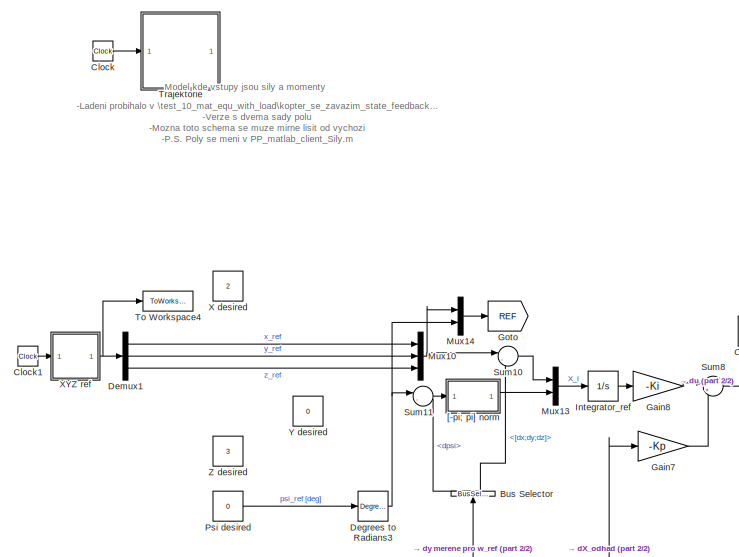
[diagram: root canvas - part 1/2, middle left region]
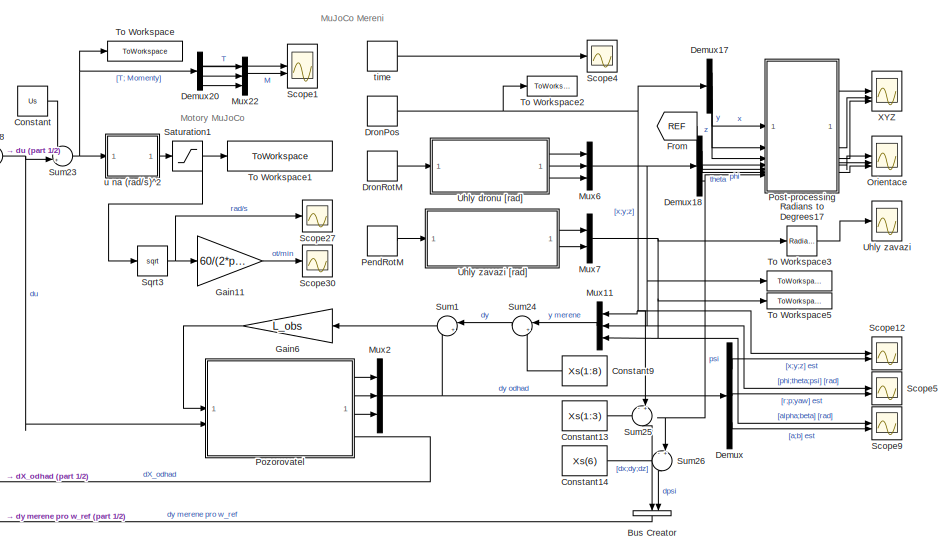
[diagram: root canvas - part 2/2, middle right region]
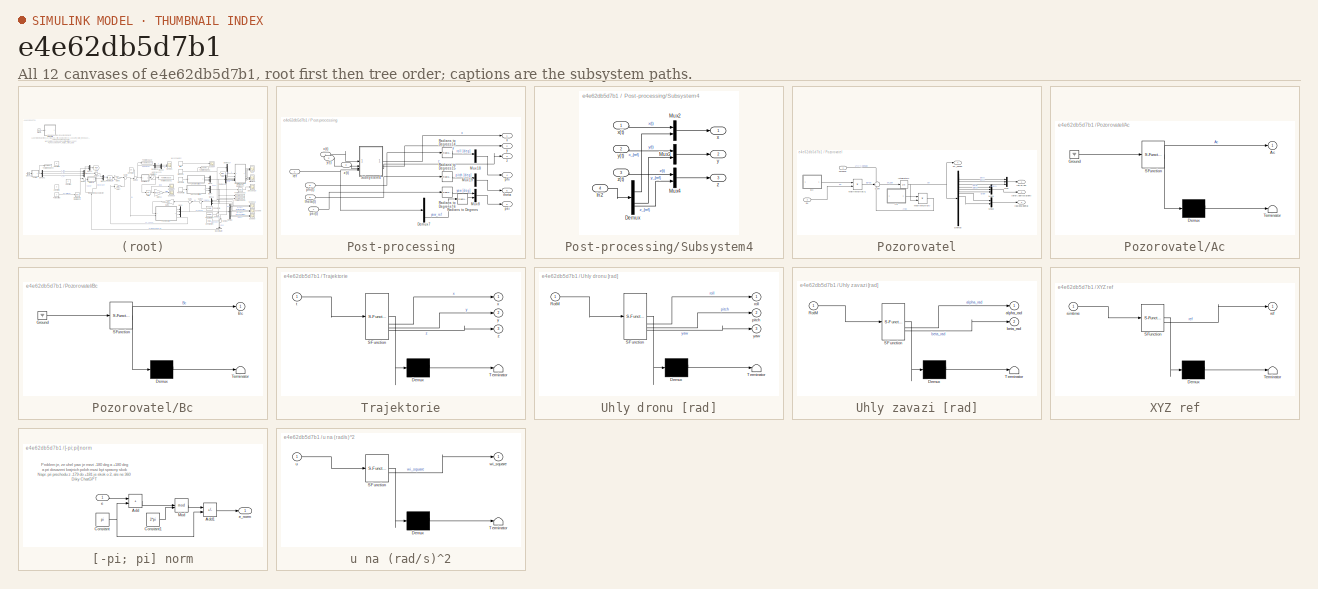
[diagram: thumbnail index - all 12 canvases of the model, root first then tree order]
MODEL slx_e4e62db5d7b1
KIND model
CONFIG AbsTol = auto
CONFIG EnableMultiTasking = off
CONFIG FixedStep = 0.005
CONFIG MaxStep = auto
CONFIG MinStep = auto
CONFIG RelTol = 1e-3
CONFIG SampleTimeConstraint = Unconstrained
CONFIG SolverName = ode1
CONFIG StartTime = 0.0
CONFIG StopTime = 50
BLOCK [BusCreator] Bus Creator
  DisplayOption = bar
  InheritFromInputs = on
  Inputs = 2
  NameLocation = left
BLOCK [BusSelector] Bus Selector
  NameLocation = right
  OutputSignals = dpsi,[dx;dy;dz]
BLOCK [Clock] Clock
  Commented = on
BLOCK [Clock] Clock1
BLOCK [Constant] Constant
  Value = Us
BLOCK [Constant] Constant13
  Value = Xs(1:3)
BLOCK [Constant] Constant14
  Value = Xs(6)
BLOCK [Constant] Constant9
  Value = Xs(1:8)
BLOCK [Reference] Degrees to Radians3  REF=simulink_extras/Transformations/Degrees to
Radians
  SourceBlock = simulink_extras/Transformations/Degrees to\nRadians
  SourceType = DegreesToRadians
BLOCK [Demux] Demux
  Outputs = 3
BLOCK [Demux] Demux1
  Outputs = 3
BLOCK [Demux] Demux17
  Outputs = 3
BLOCK [Demux] Demux18
  Outputs = 3
BLOCK [Demux] Demux20
BLOCK [MATLABFcn] DronPos
  MATLABFcn = evalin('base', 'DronPos');
  Output1D = off
  OutputDimensions = [3,1]
BLOCK [MATLABFcn] DronRotM
  MATLABFcn = evalin('base', 'DronRotM');
  Output1D = off
  OutputDimensions = [3,3]
BLOCK [From] From
  GotoTag = REF
BLOCK [Gain] Gain11
  Gain = 60/(2*pi)
BLOCK [Gain] Gain6
  Gain = L_obs
  Multiplication = Matrix(K*u)
BLOCK [Gain] Gain7
  Gain = -Kp
  Multiplication = Matrix(K*u)
BLOCK [Gain] Gain8
  Gain = -Ki
  Multiplication = Matrix(K*u)
BLOCK [Goto] Goto
  GotoTag = REF
BLOCK [Integrator] Integrator_ref
  InitialCondition = init_int_dref
BLOCK [Mux] Mux10
  DisplayOption = bar
  Inputs = 3
BLOCK [Mux] Mux11
  DisplayOption = bar
  Inputs = 3
BLOCK [Mux] Mux13
  DisplayOption = bar
  Inputs = 2
BLOCK [Mux] Mux14
  DisplayOption = bar
  Inputs = 2
BLOCK [Mux] Mux2
  DisplayOption = bar
  Inputs = 3
  NameLocation = top
BLOCK [Mux] Mux22
  DisplayOption = bar
  Inputs = 3
BLOCK [Mux] Mux6
  DisplayOption = bar
  Inputs = 3
BLOCK [Mux] Mux7
  DisplayOption = bar
  Inputs = 2
BLOCK [Scope] Orientace
  Floating = off
  NumInputPorts = 3
  ScopeSpecificationString = Simulink.scopes.TimeScopeBlockCfg('CurrentConfiguration', extmgr.ConfigurationSet(extmgr.Configuration('Core','General UI',true),extmgr.Configuration('Core','Source UI',true),extmgr.Configuration('Sources','WiredSimulink',true,'DataLoggingVariableName','ScopeData1'),extmgr.Configuration('Visuals','Time Domain',true,'PlotType','Stairs','SerializedDisplays',{struct('MinYLimReal','-20.4333','MaxYLimR...<+3445ch>
BLOCK [MATLABFcn] PendRotM
  MATLABFcn = evalin('base', 'PendRotM');
  Output1D = off
  OutputDimensions = [3,3]
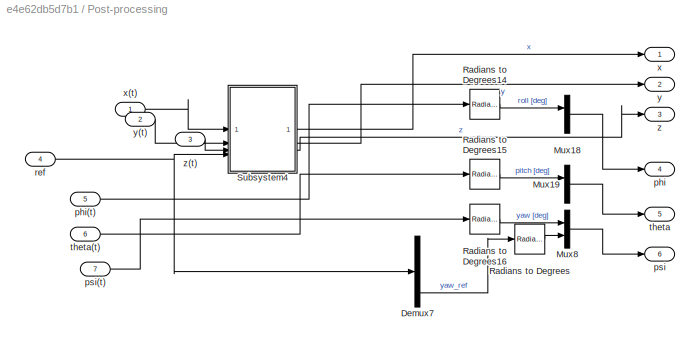
BLOCK [SubSystem] Post-processing
BLOCK [Demux] Post-processing/Demux7
BLOCK [Mux] Post-processing/Mux18
  DisplayOption = bar
  Inputs = 2
BLOCK [Mux] Post-processing/Mux19
  DisplayOption = bar
  Inputs = 2
BLOCK [Mux] Post-processing/Mux8
  DisplayOption = bar
  Inputs = 2
BLOCK [Reference] Post-processing/Radians to Degrees  REF=simulink_extras/Transformations/Radians
to Degrees
  SourceBlock = simulink_extras/Transformations/Radians\nto Degrees
  SourceType = RadiansToDegrees
BLOCK [Reference] Post-processing/Radians to Degrees14  REF=simulink_extras/Transformations/Radians
to Degrees
  SourceBlock = simulink_extras/Transformations/Radians\nto Degrees
  SourceType = RadiansToDegrees
BLOCK [Reference] Post-processing/Radians to Degrees15  REF=simulink_extras/Transformations/Radians
to Degrees
  SourceBlock = simulink_extras/Transformations/Radians\nto Degrees
  SourceType = RadiansToDegrees
BLOCK [Reference] Post-processing/Radians to Degrees16  REF=simulink_extras/Transformations/Radians
to Degrees
  SourceBlock = simulink_extras/Transformations/Radians\nto Degrees
  SourceType = RadiansToDegrees
BLOCK [SubSystem] Post-processing/Subsystem4
BLOCK [Demux] Post-processing/Subsystem4/Demux
BLOCK [Inport] Post-processing/Subsystem4/In2
  Port = 4
BLOCK [Mux] Post-processing/Subsystem4/Mux2
  DisplayOption = bar
  Inputs = 2
BLOCK [Mux] Post-processing/Subsystem4/Mux3
  DisplayOption = bar
  Inputs = 2
BLOCK [Mux] Post-processing/Subsystem4/Mux4
  DisplayOption = bar
  Inputs = 2
BLOCK [Outport] Post-processing/Subsystem4/x
BLOCK [Inport] Post-processing/Subsystem4/x(t)
BLOCK [Outport] Post-processing/Subsystem4/y
  Port = 2
BLOCK [Inport] Post-processing/Subsystem4/y(t)
  Port = 2
BLOCK [Outport] Post-processing/Subsystem4/z
  Port = 3
BLOCK [Inport] Post-processing/Subsystem4/z(t)
  Port = 3
BLOCK [Outport] Post-processing/phi
  Port = 4
BLOCK [Inport] Post-processing/phi(t)
  Port = 5
BLOCK [Outport] Post-processing/psi
  Port = 6
BLOCK [Inport] Post-processing/psi(t)
  Port = 7
BLOCK [Inport] Post-processing/ref
  Port = 4
BLOCK [Outport] Post-processing/theta
  Port = 5
BLOCK [Inport] Post-processing/theta(t)
  Port = 6
BLOCK [Outport] Post-processing/x
BLOCK [Inport] Post-processing/x(t)
BLOCK [Outport] Post-processing/y
  Port = 2
BLOCK [Inport] Post-processing/y(t)
  Port = 2
BLOCK [Outport] Post-processing/z
  Port = 3
BLOCK [Inport] Post-processing/z(t)
  Port = 3
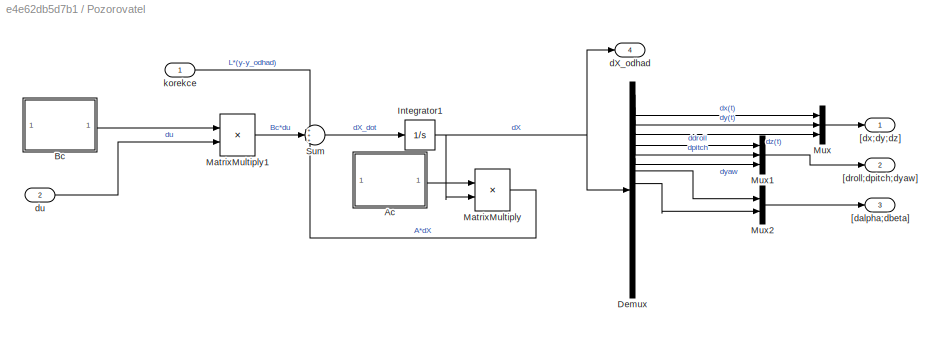
BLOCK [SubSystem] Pozorovatel
BLOCK [SubSystem] Pozorovatel/Ac
  ErrorFcn = Stateflow.Translate.translate
  PermitHierarchicalResolution = ExplicitOnly
  SFBlockType = MATLAB Function
  TreatAsAtomicUnit = on
BLOCK [Demux] Pozorovatel/Ac/ Demux 
  Outputs = 1
BLOCK [Ground] Pozorovatel/Ac/ Ground 
BLOCK [S-Function] Pozorovatel/Ac/ SFunction 
  EnableBusSupport = on
  FunctionName = sf_sfun
  Parameters = Ip,M,d,g,m
  PortCounts = [1 2]
  SFcnIsStateOwnerBlock = off
  SFunctionDeploymentMode = off
  Tag = Stateflow S-Function 2
BLOCK [Terminator] Pozorovatel/Ac/ Terminator 
BLOCK [Outport] Pozorovatel/Ac/Ac
BLOCK [SubSystem] Pozorovatel/Bc
  ErrorFcn = Stateflow.Translate.translate
  PermitHierarchicalResolution = ExplicitOnly
  SFBlockType = MATLAB Function
  TreatAsAtomicUnit = on
BLOCK [Demux] Pozorovatel/Bc/ Demux 
  Outputs = 1
BLOCK [Ground] Pozorovatel/Bc/ Ground 
BLOCK [S-Function] Pozorovatel/Bc/ SFunction 
  EnableBusSupport = on
  FunctionName = sf_sfun
  Parameters = Ixx,Iyy,Izz,M,m
  PortCounts = [1 2]
  SFcnIsStateOwnerBlock = off
  SFunctionDeploymentMode = off
  Tag = Stateflow S-Function 3
BLOCK [Terminator] Pozorovatel/Bc/ Terminator 
BLOCK [Outport] Pozorovatel/Bc/Bc
BLOCK [Demux] Pozorovatel/Demux
  Outputs = 16
BLOCK [Integrator] Pozorovatel/Integrator1
  InitialCondition = Xinit_ss - Xs
BLOCK [Product] Pozorovatel/MatrixMultiply
  Multiplication = Matrix(*)
BLOCK [Product] Pozorovatel/MatrixMultiply1
  Multiplication = Matrix(*)
BLOCK [Mux] Pozorovatel/Mux
  DisplayOption = bar
  Inputs = 3
BLOCK [Mux] Pozorovatel/Mux1
  DisplayOption = bar
  Inputs = 3
BLOCK [Mux] Pozorovatel/Mux2
  DisplayOption = bar
  Inputs = 2
BLOCK [Sum] Pozorovatel/Sum
  Inputs = +++
BLOCK [Outport] Pozorovatel/[dalpha;dbeta]
  Port = 3
BLOCK [Outport] Pozorovatel/[droll;dpitch;dyaw]
  Port = 2
BLOCK [Outport] Pozorovatel/[dx;dy;dz]
BLOCK [Outport] Pozorovatel/dX_odhad
  Port = 4
BLOCK [Inport] Pozorovatel/du
  Port = 2
BLOCK [Inport] Pozorovatel/korekce
BLOCK [Constant] Psi desired
  Value = 0
BLOCK [Reference] Radians to Degrees17  REF=simulink_extras/Transformations/Radians
to Degrees
  SourceBlock = simulink_extras/Transformations/Radians\nto Degrees
  SourceType = RadiansToDegrees
BLOCK [Saturate] Saturation1
  LowerLimit = 0
  UpperLimit = 1976^2
BLOCK [Scope] Scope1
  Floating = off
  NumInputPorts = 2
  ScopeSpecificationString = Simulink.scopes.TimeScopeBlockCfg('CurrentConfiguration', extmgr.ConfigurationSet(extmgr.Configuration('Core','General UI',true),extmgr.Configuration('Core','Source UI',true),extmgr.Configuration('Sources','WiredSimulink',true,'DataLoggingVariableName','ScopeData1'),extmgr.Configuration('Visuals','Time Domain',true,'SerializedDisplays',{struct('MinYLimReal','-25.21305','MaxYLimReal','97.36753','YL...<+2267ch>
BLOCK [Scope] Scope12
  Commented = on
  Floating = off
  NumInputPorts = 2
  ScopeSpecificationString = Simulink.scopes.TimeScopeBlockCfg('CurrentConfiguration', extmgr.ConfigurationSet(extmgr.Configuration('Core','General UI',true),extmgr.Configuration('Core','Source UI',true),extmgr.Configuration('Sources','WiredSimulink',true,'DataLoggingVariableName','ScopeData1'),extmgr.Configuration('Visuals','Time Domain',true,'SerializedDisplays',{struct('MinYLimReal','-4.72902','MaxYLimReal','9.5391','YLabe...<+1733ch>
BLOCK [Scope] Scope27
  Floating = off
  NumInputPorts = 1
  ScopeSpecificationString = Simulink.scopes.TimeScopeBlockCfg('CurrentConfiguration', extmgr.ConfigurationSet(extmgr.Configuration('Core','General UI',true),extmgr.Configuration('Core','Source UI',true),extmgr.Configuration('Sources','WiredSimulink',true,'DataLoggingVariableName','ScopeData2'),extmgr.Configuration('Visuals','Time Domain',true,'SerializedDisplays',{struct('MinYLimReal','258.69126','MaxYLimReal','1402.04628','...<+1576ch>
BLOCK [Scope] Scope30
  Commented = on
  Floating = off
  NumInputPorts = 1
  ScopeSpecificationString = Simulink.scopes.TimeScopeBlockCfg('CurrentConfiguration', extmgr.ConfigurationSet(extmgr.Configuration('Core','General UI',true),extmgr.Configuration('Core','Source UI',true),extmgr.Configuration('Sources','WiredSimulink',true,'DataLoggingVariableName','ScopeData3'),extmgr.Configuration('Visuals','Time Domain',true,'SerializedDisplays',{struct('MinYLimReal','2470.31961','MaxYLimReal','13388.55573'...<+1588ch>
BLOCK [Scope] Scope4
  Floating = off
  NumInputPorts = 1
  ScopeSpecificationString = Simulink.scopes.TimeScopeBlockCfg('CurrentConfiguration', extmgr.ConfigurationSet(extmgr.Configuration('Core','General UI',true),extmgr.Configuration('Core','Source UI',true),extmgr.Configuration('Sources','WiredSimulink',true,'DataLoggingVariableName','ScopeData7'),extmgr.Configuration('Visuals','Time Domain',true,'SerializedDisplays',{struct('MinYLimReal','-2.00000','MaxYLimReal','18.00000','YLa...<+1529ch>
BLOCK [Scope] Scope5
  Commented = on
  Floating = off
  NumInputPorts = 2
  ScopeSpecificationString = Simulink.scopes.TimeScopeBlockCfg('CurrentConfiguration', extmgr.ConfigurationSet(extmgr.Configuration('Core','General UI',true),extmgr.Configuration('Core','Source UI',true),extmgr.Configuration('Sources','WiredSimulink',true,'DataLoggingVariableName','ScopeData2'),extmgr.Configuration('Visuals','Time Domain',true,'SerializedDisplays',{struct('MinYLimReal','-0.12215','MaxYLimReal','0.18486','YLab...<+1785ch>
BLOCK [Scope] Scope9
  Commented = on
  Floating = off
  NumInputPorts = 2
  ScopeSpecificationString = Simulink.scopes.TimeScopeBlockCfg('CurrentConfiguration', extmgr.ConfigurationSet(extmgr.Configuration('Core','General UI',true),extmgr.Configuration('Core','Source UI',true),extmgr.Configuration('Sources','WiredSimulink',true,'DataLoggingVariableName','ScopeData4'),extmgr.Configuration('Visuals','Time Domain',true,'SerializedDisplays',{struct('MinYLimReal','-0.22219','MaxYLimReal','0.18386','YLab...<+1590ch>
BLOCK [Sqrt] Sqrt3
BLOCK [Sum] Sum1
  Inputs = |+-
BLOCK [Sum] Sum10
  Inputs = |-+
BLOCK [Sum] Sum11
  Inputs = |-+
BLOCK [Sum] Sum23
  Inputs = ++|
BLOCK [Sum] Sum24
  Inputs = |+-
BLOCK [Sum] Sum25
  Inputs = -+|
  NameLocation = left
BLOCK [Sum] Sum26
  Inputs = -+|
  NameLocation = left
BLOCK [Sum] Sum8
  Inputs = |++
BLOCK [ToWorkspace] To Workspace
  FixptAsFi = on
  MaxDataPoints = inf
  SampleTime = -1
  SaveFormat = Timeseries
  VariableName = sily
BLOCK [ToWorkspace] To Workspace1
  FixptAsFi = on
  MaxDataPoints = inf
  SampleTime = -1
  VariableName = Rotor_AngVel_square
BLOCK [ToWorkspace] To Workspace2
  FixptAsFi = on
  MaxDataPoints = inf
  SampleTime = -1
  SaveFormat = Timeseries
  VariableName = dron_pos
BLOCK [ToWorkspace] To Workspace3
  FixptAsFi = on
  MaxDataPoints = inf
  SampleTime = -1
  SaveFormat = Timeseries
  VariableName = dron_angles
BLOCK [ToWorkspace] To Workspace4
  FixptAsFi = on
  MaxDataPoints = inf
  SampleTime = -1
  SaveFormat = Timeseries
  VariableName = ref
BLOCK [ToWorkspace] To Workspace5
  FixptAsFi = on
  MaxDataPoints = inf
  SampleTime = -1
  SaveFormat = Timeseries
  VariableName = pend_angles
BLOCK [SubSystem] Trajektorie
  Commented = on
  ErrorFcn = Stateflow.Translate.translate
  PermitHierarchicalResolution = ExplicitOnly
  SFBlockType = MATLAB Function
  TreatAsAtomicUnit = on
BLOCK [Demux] Trajektorie/ Demux 
  Outputs = 1
BLOCK [S-Function] Trajektorie/ SFunction 
  EnableBusSupport = on
  FunctionName = sf_sfun
  PortCounts = [1 4]
  SFcnIsStateOwnerBlock = off
  SFunctionDeploymentMode = off
  Tag = Stateflow S-Function 4
BLOCK [Terminator] Trajektorie/ Terminator 
BLOCK [Inport] Trajektorie/t
BLOCK [Outport] Trajektorie/x
BLOCK [Outport] Trajektorie/y
  Port = 2
BLOCK [Outport] Trajektorie/z
  Port = 3
BLOCK [SubSystem] Uhly dronu [rad]
  ErrorFcn = Stateflow.Translate.translate
  PermitHierarchicalResolution = ExplicitOnly
  SFBlockType = MATLAB Function
  TreatAsAtomicUnit = on
BLOCK [Demux] Uhly dronu [rad]/ Demux 
  Outputs = 1
BLOCK [S-Function] Uhly dronu [rad]/ SFunction 
  EnableBusSupport = on
  FunctionName = sf_sfun
  PortCounts = [1 4]
  SFcnIsStateOwnerBlock = off
  SFunctionDeploymentMode = off
  Tag = Stateflow S-Function 1
BLOCK [Terminator] Uhly dronu [rad]/ Terminator 
BLOCK [Inport] Uhly dronu [rad]/RotM
BLOCK [Outport] Uhly dronu [rad]/pitch
  Port = 2
BLOCK [Outport] Uhly dronu [rad]/roll
BLOCK [Outport] Uhly dronu [rad]/yaw
  Port = 3
BLOCK [Scope] Uhly zavazi
  Floating = off
  NumInputPorts = 1
  ScopeSpecificationString = Simulink.scopes.TimeScopeBlockCfg('CurrentConfiguration', extmgr.ConfigurationSet(extmgr.Configuration('Core','General UI',true),extmgr.Configuration('Core','Source UI',true),extmgr.Configuration('Sources','WiredSimulink',true,'DataLoggingVariableName','ScopeData2'),extmgr.Configuration('Visuals','Time Domain',true,'PlotType','Stairs','SerializedDisplays',{struct('MinYLimReal','-30.5645','MaxYLimR...<+1794ch>
BLOCK [SubSystem] Uhly zavazi [rad]
  ErrorFcn = Stateflow.Translate.translate
  PermitHierarchicalResolution = ExplicitOnly
  SFBlockType = MATLAB Function
  TreatAsAtomicUnit = on
BLOCK [Demux] Uhly zavazi [rad]/ Demux 
  Outputs = 1
BLOCK [S-Function] Uhly zavazi [rad]/ SFunction 
  EnableBusSupport = on
  FunctionName = sf_sfun
  PortCounts = [1 3]
  SFcnIsStateOwnerBlock = off
  SFunctionDeploymentMode = off
  Tag = Stateflow S-Function 9
BLOCK [Terminator] Uhly zavazi [rad]/ Terminator 
BLOCK [Inport] Uhly zavazi [rad]/RotM
BLOCK [Outport] Uhly zavazi [rad]/alpha_rad
BLOCK [Outport] Uhly zavazi [rad]/beta_rad
  Port = 2
BLOCK [Constant] X desired
  Value = 2
BLOCK [Scope] XYZ
  Floating = off
  NumInputPorts = 3
  ScopeSpecificationString = Simulink.scopes.TimeScopeBlockCfg('CurrentConfiguration', extmgr.ConfigurationSet(extmgr.Configuration('Core','General UI',true,'FigureColor',[0 0 0]),extmgr.Configuration('Core','Source UI',true),extmgr.Configuration('Sources','WiredSimulink',true,'DataLoggingVariableName','ScopeData6'),extmgr.Configuration('Visuals','Time Domain',true,'PlotType','Stairs','SerializedDisplays',{struct('MinYLimReal...<+3762ch>
BLOCK [SubSystem] XYZ ref
  ErrorFcn = Stateflow.Translate.translate
  PermitHierarchicalResolution = ExplicitOnly
  SFBlockType = MATLAB Function
  TreatAsAtomicUnit = on
BLOCK [Demux] XYZ ref/ Demux 
  Outputs = 1
BLOCK [S-Function] XYZ ref/ SFunction 
  EnableBusSupport = on
  FunctionName = sf_sfun
  PortCounts = [1 2]
  SFcnIsStateOwnerBlock = off
  SFunctionDeploymentMode = off
  Tag = Stateflow S-Function 5
BLOCK [Terminator] XYZ ref/ Terminator 
BLOCK [Outport] XYZ ref/ref
BLOCK [Inport] XYZ ref/simtime
BLOCK [Constant] Y desired
  Value = 0
BLOCK [Constant] Z desired
  Value = 3
BLOCK [SubSystem] [-pi; pi] norm
BLOCK [Sum] [-pi; pi] norm/Add
  IconShape = rectangular
BLOCK [Sum] [-pi; pi] norm/Add1
  IconShape = rectangular
  Inputs = +-
BLOCK [Constant] [-pi; pi] norm/Constant
  Value = pi
BLOCK [Constant] [-pi; pi] norm/Constant1
  Value = 2*pi
BLOCK [Math] [-pi; pi] norm/Mod
  Operator = mod
BLOCK [Inport] [-pi; pi] norm/e
BLOCK [Outport] [-pi; pi] norm/e_norm
BLOCK [MATLABFcn] time
  MATLABFcn = evalin('base', 'time');
  Output1D = off
BLOCK [SubSystem] u na (rad//s)^2
  ErrorFcn = Stateflow.Translate.translate
  PermitHierarchicalResolution = ExplicitOnly
  SFBlockType = MATLAB Function
  TreatAsAtomicUnit = on
BLOCK [Demux] u na (rad//s)^2/ Demux 
  Outputs = 1
BLOCK [S-Function] u na (rad//s)^2/ SFunction 
  EnableBusSupport = on
  FunctionName = sf_sfun
  Parameters = b_moment,k_thrust,l
  PortCounts = [1 2]
  SFcnIsStateOwnerBlock = off
  SFunctionDeploymentMode = off
  Tag = Stateflow S-Function 13
BLOCK [Terminator] u na (rad//s)^2/ Terminator 
BLOCK [Inport] u na (rad//s)^2/u
BLOCK [Outport] u na (rad//s)^2/wi_square
ANNOTATION (root): - Ladeni probihalo v \test_10_mat_equ_with_load\kopter_se_zavazim_state_feedback.slx -Verze s dvema sady polu -Mozna toto schema se muze mirne lisit od vychozi -P.S. Poly se meni v PP_matlab_client_Sily.m
ANNOTATION (root): Model kde vstupy jsou sily a momenty
ANNOTATION (root): Motory MuJoCo
ANNOTATION (root): MuJoCo Mereni
ANNOTATION [-pi; pi] norm: Problem je, ze uhel yaw je mezi -180 deg a +180 deg a pri dosazeni krajnich poloh musi byt spravny skok Napr. pri prechodu z -179 do +181 je skok o 2, ale ne 360 Diky ChatGPT
LINE Bus Creator:1 -> Bus Selector:1
LINE Bus Selector:1 -> Sum11:2
LINE Bus Selector:2 -> Sum10:2
LINE Clock1:1 -> XYZ ref:1
LINE Clock:1 -> Trajektorie:1
LINE Constant13:1 -> Sum25:1
LINE Constant14:1 -> Sum26:1
LINE Constant9:1 -> Sum24:2
LINE Constant:1 -> Sum23:1
NET Degrees to Radians3:1 -> Mux14:2, Sum11:1
LINE Demux17:1 -> Post-processing:1
LINE Demux17:2 -> Post-processing:2
LINE Demux17:3 -> Post-processing:3
LINE Demux18:1 -> Post-processing:5
LINE Demux18:2 -> Post-processing:6
NET Demux18:3 -> Post-processing:7, Sum26:2
LINE Demux1:1 -> Mux10:1
LINE Demux1:2 -> Mux10:2
LINE Demux1:3 -> Mux10:3
LINE Demux20:1 -> Scope1:1
LINE Demux20:2 -> Mux22:1
LINE Demux20:3 -> Mux22:2
LINE Demux20:4 -> Mux22:3
LINE Demux:1 -> Scope12:2
LINE Demux:2 -> Scope5:2
LINE Demux:3 -> Scope9:2
NET DronPos:1 -> Demux17:1, Mux11:1, Scope12:1, Sum25:2, To Workspace2:1
LINE DronRotM:1 -> Uhly dronu [rad]:1
LINE From:1 -> Post-processing:4
LINE Gain11:1 -> Scope30:1
LINE Gain6:1 -> Pozorovatel:1
LINE Gain7:1 -> Sum8:2
LINE Gain8:1 -> Sum8:1
LINE Integrator_ref:1 -> Gain8:1
NET Mux10:1 -> Mux14:1, Sum10:1
LINE Mux11:1 -> Sum24:1
LINE Mux13:1 -> Integrator_ref:1
LINE Mux14:1 -> Goto:1
LINE Mux22:1 -> Scope1:2
NET Mux2:1 -> Demux:1, Sum1:2
NET Mux6:1 -> Demux18:1, Mux11:2, Scope5:1, To Workspace3:1
NET Mux7:1 -> Mux11:3, Radians to Degrees17:1, Scope9:1, To Workspace5:1
LINE PendRotM:1 -> Uhly zavazi [rad]:1
LINE Post-processing/Demux7:4 -> Post-processing/Radians to Degrees:1
LINE Post-processing/Mux18:1 -> Post-processing/phi:1
LINE Post-processing/Mux19:1 -> Post-processing/theta:1
LINE Post-processing/Mux8:1 -> Post-processing/psi:1
LINE Post-processing/Radians to Degrees14:1 -> Post-processing/Mux18:1
LINE Post-processing/Radians to Degrees15:1 -> Post-processing/Mux19:1
LINE Post-processing/Radians to Degrees16:1 -> Post-processing/Mux8:1
LINE Post-processing/Radians to Degrees:1 -> Post-processing/Mux8:2
LINE Post-processing/Subsystem4/Demux:1 -> Post-processing/Subsystem4/Mux2:2
LINE Post-processing/Subsystem4/Demux:2 -> Post-processing/Subsystem4/Mux3:2
LINE Post-processing/Subsystem4/Demux:3 -> Post-processing/Subsystem4/Mux4:2
LINE Post-processing/Subsystem4/In2:1 -> Post-processing/Subsystem4/Demux:1
LINE Post-processing/Subsystem4/Mux2:1 -> Post-processing/Subsystem4/x:1
LINE Post-processing/Subsystem4/Mux3:1 -> Post-processing/Subsystem4/y:1
LINE Post-processing/Subsystem4/Mux4:1 -> Post-processing/Subsystem4/z:1
LINE Post-processing/Subsystem4/x(t):1 -> Post-processing/Subsystem4/Mux2:1
LINE Post-processing/Subsystem4/y(t):1 -> Post-processing/Subsystem4/Mux3:1
LINE Post-processing/Subsystem4/z(t):1 -> Post-processing/Subsystem4/Mux4:1
LINE Post-processing/Subsystem4:1 -> Post-processing/x:1
LINE Post-processing/Subsystem4:2 -> Post-processing/y:1
LINE Post-processing/Subsystem4:3 -> Post-processing/z:1
LINE Post-processing/phi(t):1 -> Post-processing/Radians to Degrees14:1
LINE Post-processing/psi(t):1 -> Post-processing/Radians to Degrees16:1
NET Post-processing/ref:1 -> Post-processing/Demux7:1, Post-processing/Subsystem4:4
LINE Post-processing/theta(t):1 -> Post-processing/Radians to Degrees15:1
LINE Post-processing/x(t):1 -> Post-processing/Subsystem4:1
LINE Post-processing/y(t):1 -> Post-processing/Subsystem4:2
LINE Post-processing/z(t):1 -> Post-processing/Subsystem4:3
LINE Post-processing:1 -> XYZ:1
LINE Post-processing:2 -> XYZ:2
LINE Post-processing:3 -> XYZ:3
LINE Post-processing:4 -> Orientace:1
LINE Post-processing:5 -> Orientace:2
LINE Post-processing:6 -> Orientace:3
LINE Pozorovatel/Ac:1 -> Pozorovatel/MatrixMultiply:1
LINE Pozorovatel/Bc:1 -> Pozorovatel/MatrixMultiply1:1
LINE Pozorovatel/Demux:1 -> Pozorovatel/Mux:1
LINE Pozorovatel/Demux:2 -> Pozorovatel/Mux:2
LINE Pozorovatel/Demux:3 -> Pozorovatel/Mux:3
LINE Pozorovatel/Demux:4 -> Pozorovatel/Mux1:1
LINE Pozorovatel/Demux:5 -> Pozorovatel/Mux1:2
LINE Pozorovatel/Demux:6 -> Pozorovatel/Mux1:3
LINE Pozorovatel/Demux:7 -> Pozorovatel/Mux2:1
LINE Pozorovatel/Demux:8 -> Pozorovatel/Mux2:2
NET Pozorovatel/Integrator1:1 -> Pozorovatel/Demux:1, Pozorovatel/MatrixMultiply:2, Pozorovatel/dX_odhad:1
LINE Pozorovatel/MatrixMultiply1:1 -> Pozorovatel/Sum:2
LINE Pozorovatel/MatrixMultiply:1 -> Pozorovatel/Sum:3
LINE Pozorovatel/Mux1:1 -> Pozorovatel/[droll;dpitch;dyaw]:1
LINE Pozorovatel/Mux2:1 -> Pozorovatel/[dalpha;dbeta]:1
LINE Pozorovatel/Mux:1 -> Pozorovatel/[dx;dy;dz]:1
LINE Pozorovatel/Sum:1 -> Pozorovatel/Integrator1:1
LINE Pozorovatel/du:1 -> Pozorovatel/MatrixMultiply1:2
LINE Pozorovatel/korekce:1 -> Pozorovatel/Sum:1
LINE Pozorovatel:1 -> Mux2:1
LINE Pozorovatel:2 -> Mux2:2
LINE Pozorovatel:3 -> Mux2:3
LINE Pozorovatel:4 -> Gain7:1
LINE Psi desired:1 -> Degrees to Radians3:1
LINE Radians to Degrees17:1 -> Uhly zavazi:1
NET Saturation1:1 -> Sqrt3:1, To Workspace1:1
NET Sqrt3:1 -> Gain11:1, Scope27:1
LINE Sum10:1 -> Mux13:1
LINE Sum11:1 -> [-pi; pi] norm:1
LINE Sum1:1 -> Gain6:1
NET Sum23:1 -> Demux20:1, To Workspace:1, u na (rad//s)^2:1
LINE Sum24:1 -> Sum1:1
LINE Sum25:1 -> Bus Creator:1
LINE Sum26:1 -> Bus Creator:2
NET Sum8:1 -> Pozorovatel:2, Sum23:2
LINE Uhly dronu [rad]:1 -> Mux6:1
LINE Uhly dronu [rad]:2 -> Mux6:2
LINE Uhly dronu [rad]:3 -> Mux6:3
LINE Uhly zavazi [rad]:1 -> Mux7:1
LINE Uhly zavazi [rad]:2 -> Mux7:2
NET XYZ ref:1 -> Demux1:1, To Workspace4:1
LINE [-pi; pi] norm/Add1:1 -> [-pi; pi] norm/e_norm:1
LINE [-pi; pi] norm/Add:1 -> [-pi; pi] norm/Mod:1
LINE [-pi; pi] norm/Constant1:1 -> [-pi; pi] norm/Mod:2
NET [-pi; pi] norm/Constant:1 -> [-pi; pi] norm/Add1:2, [-pi; pi] norm/Add:2
LINE [-pi; pi] norm/Mod:1 -> [-pi; pi] norm/Add1:1
LINE [-pi; pi] norm/e:1 -> [-pi; pi] norm/Add:1
LINE [-pi; pi] norm:1 -> Mux13:2
LINE time:1 -> Scope4:1
LINE u na (rad//s)^2:1 -> Saturation1:1
note: NET lines group one-source signal fan-out (src -> all destinations, sorted); 1:1 wires keep LINE
CHART Uhly dronu [rad] states=1 transitions=1
  STATE_LABEL 'eML_blk_kernel()'
  STATE_LABEL "SCRIPT:\nfunction [roll, pitch, yaw] = quad_attitude(RotM)\n% matice rotace koptery z Python, vuci svetu!!!\n% rotm2eul prevadi na Eulerove uhly\nradians = rotm2eul(RotM, 'ZYX'); % pouzivam poradi ZYX\n\n% roll = kolem x, pitch = kolem y, yaw = kolem z\nyaw = radians(1);\npitch = radians(2);\nroll = radians(3);\nend\n"
CHART Pozorovatel/Ac states=1 transitions=1
  STATE_LABEL 'eML_blk_kernel()'
  STATE_LABEL 'SCRIPT:\nfunction Ac = fcn(g, M, m, Ip, d)\n% Matice Ac linearizovana kvadrokoptera+zavazi\n\nAc = [\n0, 0, 0,                 0,                  0, 0,                  0,                  0, 1, 0, 0, 0, 0, 0, 0, 0;\n0, 0, 0,                 0,                  0, 0,                  0,                  0, 0, 1, 0, 0, 0, 0, 0, 0;\n0, 0, 0,                 0,                  0, 0,                  0,   ...<+1542ch>'
CHART Pozorovatel/Bc states=1 transitions=1
  STATE_LABEL 'eML_blk_kernel()'
  STATE_LABEL 'SCRIPT:\nfunction Bc = fcn(M, Ixx, Iyy, Izz, m)\n% Matice Ac linearizovana\n\nBc = [\n        0,     0,     0,     0;\n        0,     0,     0,     0;\n        0,     0,     0,     0;\n        0,     0,     0,     0;\n        0,     0,     0,     0;\n        0,     0,     0,     0;\n        0,     0,     0,     0;\n        0,     0,     0,     0;\n        0,     0,     0,     0;\n        0,     0,     0,     0;...<+194ch>'
CHART Trajektorie states=1 transitions=1
  STATE_LABEL 'eML_blk_kernel()'
  STATE_LABEL 'SCRIPT:\nfunction [x, y, z] = spiralTrajectory(t)\n% t — текущее время симуляции (0–60 секунд)\n% x, y, z — координаты объекта\n\n% Параметры\nt_total = 60;              % общее время\nt_phase1 = 7;              % время фазы 1 (разгон по X)\nspiral_radius = 4;         % радиус спирали\nz_start = 2;\nz_end = 10;\nz_per_turn = 2;\nn_turns = (z_end - z_start) / z_per_turn;\nt_spiral = t_total - t_phase1;   % длит...<+410ch>'
CHART XYZ ref states=1 transitions=1
  STATE_LABEL 'eML_blk_kernel()'
  STATE_LABEL 'SCRIPT:\nfunction ref = fcn(simtime)\n% pouze poloha, yaw_ref=0\nif simtime < 1\n    ref = [0;0;2];\nelseif simtime < 6\n    ref = [3;3;2];\nelseif simtime < 10\n    ref = [3;3;6];\nelseif simtime < 15\n    ref = [3;0;6];\nelseif simtime < 22\n    ref = [3;-3;8];\nelseif simtime < 30\n    ref = [-3;0;6];\nelseif simtime < 35\n    ref = [-3;3;6];\nelseif simtime < 38\n    ref = [-3;3;3];\nelseif simtime < 40\n    ref ...<+127ch>'
CHART Uhly zavazi [rad] states=1 transitions=1
  STATE_LABEL 'eML_blk_kernel()'
  STATE_LABEL 'SCRIPT:\nfunction [alpha_rad, beta_rad] = pend_orient(RotM)\n% Расчет углов альфа и бета маятника\n\n% Вектор маятника\nrope_vector = RotM * [0; 0; -1];\n\n% Расчет угла альфа\nrope_vector_xz = rope_vector([1, 3]); % Компоненты x и z\nz_axis = [0; -1];\ncos_alpha = dot(rope_vector_xz, z_axis) / (norm(rope_vector_xz) * norm(z_axis));\ncos_alpha = max(-1, min(1, cos_alpha)); % Ограничиваем в диапазоне [-1, 1]\n...<+530ch>'
CHART u na (rad//s)^2 states=1 transitions=1
  STATE_LABEL 'eML_blk_kernel()'
  STATE_LABEL 'SCRIPT:\nfunction wi_square = fcn(u, b_moment, k_thrust, l)\n\nT = u(1);\nTau_phi = u(2);\nTau_theta = u(3);\nTau_psi = u(4);\n\nw1 = ( (Tau_phi*b_moment - Tau_theta*b_moment + l*T*b_moment + l*Tau_psi*k_thrust)/(4*l*b_moment*k_thrust));\nw2 = ( (-Tau_theta*b_moment - Tau_phi*b_moment + l*T*b_moment - l*Tau_psi*k_thrust)/(4*l*b_moment*k_thrust));\nw3 = ( (Tau_theta*b_moment - Tau_phi*b_moment + l*T*b_moment...<+189ch>'
CHART  states=0 transitions=0
CHART  states=0 transitions=0
CHART  states=0 transitions=0
CHART  states=0 transitions=0
CHART  states=0 transitions=0
CHART  states=0 transitions=0
CHART  states=0 transitions=0
